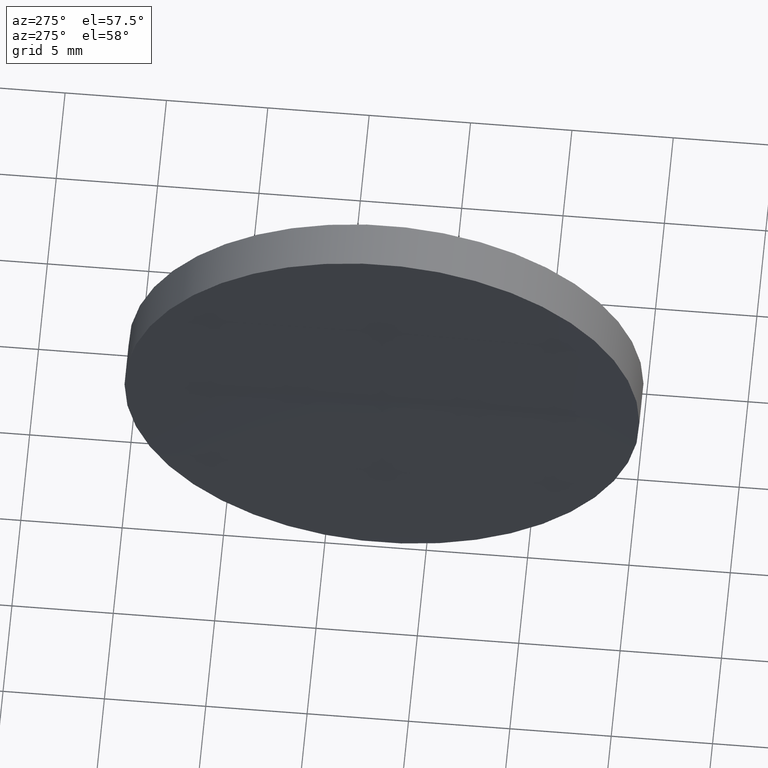
[diagram: clean part render]
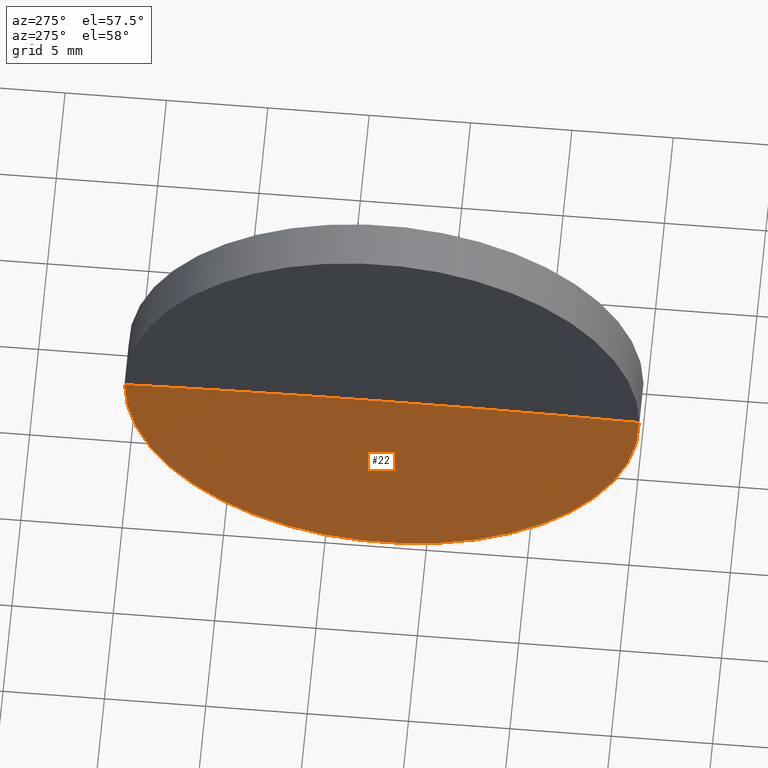
[diagram: same view with one face highlighted and labeled with its STEP entity id]
A machine part, auxiliary view. The second image highlights one B-rep face of the part: STEP entity #22.
In plain terms, the highlighted spherical surface has radius 561.6 mm.
Its self-contained STEP definition (entity closure, byte-faithful):
#10 = DIRECTION ( 'NONE',  ( -5.973045976941762700E-032, 1.224646799147353200E-016, -1.000000000000000000 ) ) ;
#12 = DIRECTION ( 'NONE',  ( 1.000000000000000000, 0.0000000000000000000, 0.0000000000000000000 ) ) ;
#16 = AXIS2_PLACEMENT_3D ( 'NONE', #189, #147, #74 ) ;
#17 = VERTEX_POINT ( 'NONE', #68 ) ;
#21 = ORIENTED_EDGE ( 'NONE', *, *, #134, .F. ) ;
#22 = ADVANCED_FACE ( 'NONE', ( #125 ), #64, .F. ) ;
#38 = DIRECTION ( 'NONE',  ( 0.0000000000000000000, -0.0000000000000000000, 1.000000000000000000 ) ) ;
#40 = VERTEX_POINT ( 'NONE', #188 ) ;
#48 = AXIS2_PLACEMENT_3D ( 'NONE', #127, #38, #12 ) ;
#50 = ORIENTED_EDGE ( 'NONE', *, *, #129, .T. ) ;
#52 = ORIENTED_EDGE ( 'NONE', *, *, #66, .T. ) ;
#55 = CIRCLE ( 'NONE', #48, 561.6000000000000200 ) ;
#62 = CIRCLE ( 'NONE', #16, 12.70000000000000300 ) ;
#64 = SPHERICAL_SURFACE ( 'NONE', #112, 561.6000000000000200 ) ;
#66 = EDGE_CURVE ( 'NONE', #17, #184, #55, .T. ) ;
#68 = CARTESIAN_POINT ( 'NONE',  ( 95.09044359151263800, 52.17808229839221900, 0.0000000000000000000 ) ) ;
#74 = DIRECTION ( 'NONE',  ( 0.0000000000000000000, -1.000000000000000000, 0.0000000000000000000 ) ) ;
#90 = CARTESIAN_POINT ( 'NONE',  ( -466.5095564084873600, 52.17808229839191400, 0.0000000000000000000 ) ) ;
#96 = CARTESIAN_POINT ( 'NONE',  ( -466.5095564084873600, 52.17808229839191400, 0.0000000000000000000 ) ) ;
#103 = DIRECTION ( 'NONE',  ( 0.0000000000000000000, 1.000000000000000000, 1.224646799147353200E-016 ) ) ;
#109 = DIRECTION ( 'NONE',  ( -4.942232125290049200E-016, 1.000000000000000000, 0.0000000000000000000 ) ) ;
#112 = AXIS2_PLACEMENT_3D ( 'NONE', #96, #120, #109 ) ;
#116 = AXIS2_PLACEMENT_3D ( 'NONE', #90, #10, #103 ) ;
#120 = DIRECTION ( 'NONE',  ( 0.0000000000000000000, 0.0000000000000000000, -1.000000000000000000 ) ) ;
#125 = FACE_OUTER_BOUND ( 'NONE', #126, .T. ) ;
#126 = EDGE_LOOP ( 'NONE', ( #21, #52, #50 ) ) ;
#127 = CARTESIAN_POINT ( 'NONE',  ( -466.5095564084873600, 52.17808229839191400, 0.0000000000000000000 ) ) ;
#129 = EDGE_CURVE ( 'NONE', #184, #40, #62, .T. ) ;
#131 = CIRCLE ( 'NONE', #116, 561.6000000000000200 ) ;
#134 = EDGE_CURVE ( 'NONE', #17, #40, #131, .T. ) ;
#145 = CARTESIAN_POINT ( 'NONE',  ( 94.94682658132265400, 64.87808229838628900, 0.0000000000000000000 ) ) ;
#147 = DIRECTION ( 'NONE',  ( -1.000000000000000000, -4.877362175853829600E-016, -0.0000000000000000000 ) ) ;
#184 = VERTEX_POINT ( 'NONE', #145 ) ;
#188 = CARTESIAN_POINT ( 'NONE',  ( 94.94682658132265400, 39.47808229839580500, -1.555301434916695900E-015 ) ) ;
#189 = CARTESIAN_POINT ( 'NONE',  ( 94.94682658132261100, 52.17808229838991000, 0.0000000000000000000 ) ) ;